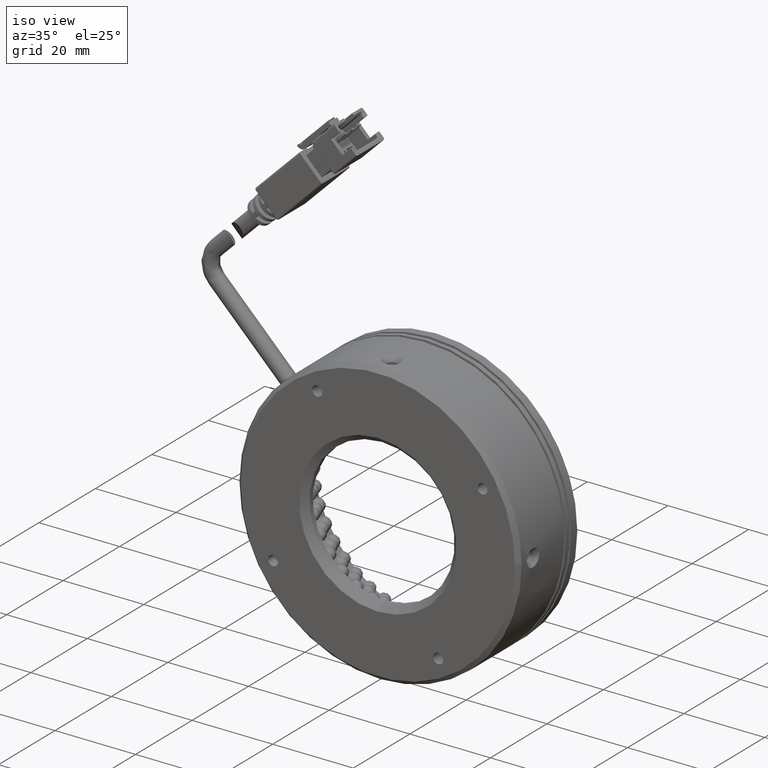
[diagram: clean part render]
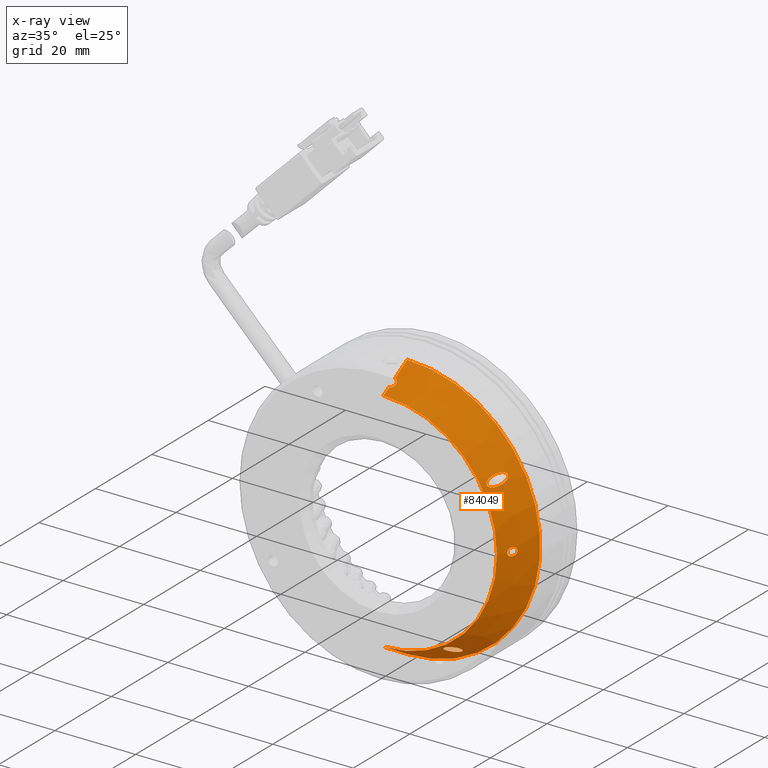
[diagram: x-ray — body ghosted, one internal face saturated and labeled with its STEP entity id]
A machine part, iso view, then the same camera in x-ray: the body is ghosted and one INTERNAL B-rep face — a face not visible from any outside direction — is saturated and labeled: STEP entity #84049.
In plain terms, the highlighted conical surface has half-angle 30 deg.
Its self-contained STEP definition (entity closure, byte-faithful):
#139 = CARTESIAN_POINT ( 'NONE',  ( -21.49797626354831700, -22.38189082735741000, -38.05720094836896500 ) ) ;
#884 = EDGE_CURVE ( 'NONE', #98752, #81162, #46905, .T. ) ;
#1439 = CARTESIAN_POINT ( 'NONE',  ( -36.22376356038467500, -21.73693679055958600, 16.74963210051000200 ) ) ;
#1794 = CARTESIAN_POINT ( 'NONE',  ( -36.75306528832788900, -22.62191358938516200, 16.25172830254819400 ) ) ;
#2592 = LINE ( 'NONE', #37901, #45368 ) ;
#2622 = CARTESIAN_POINT ( 'NONE',  ( -12.49590205995173700, -23.35478545311198000, 1.922784725851853800 ) ) ;
#2727 = AXIS2_PLACEMENT_3D ( 'NONE', #3789, #3655, #50802 ) ;
#2742 = EDGE_CURVE ( 'NONE', #93851, #26263, #67581, .T. ) ;
#2955 = CARTESIAN_POINT ( 'NONE',  ( -11.38264825980980400, -22.77147196096935700, 0.6475745150449768700 ) ) ;
#3655 = DIRECTION ( 'NONE',  ( -0.0000000000000000000, -1.000000000000000000, -0.0000000000000000000 ) ) ;
#3789 = CARTESIAN_POINT ( 'NONE',  ( -37.22376356038467500, -16.31354303190076000, -13.10242548495533300 ) ) ;
#3833 = CARTESIAN_POINT ( 'NONE',  ( -10.09720084762829000, -20.21535822616905200, 1.373669039488855300 ) ) ;
#3980 = CARTESIAN_POINT ( 'NONE',  ( -22.42275238001242600, -23.53538197597976700, -37.84384934490885400 ) ) ;
#4119 = ORIENTED_EDGE ( 'NONE', *, *, #41633, .T. ) ;
#4163 = CARTESIAN_POINT ( 'NONE',  ( -10.95214698531410800, -19.98672586071596400, 3.125690230019678900 ) ) ;
#4224 = CARTESIAN_POINT ( 'NONE',  ( -37.22376356038467500, -22.73693679055958600, 16.18902639937197900 ) ) ;
#4320 = CARTESIAN_POINT ( 'NONE',  ( -23.41550013853525400, -21.89990982141873500, -39.48170362565058900 ) ) ;
#5078 = CARTESIAN_POINT ( 'NONE',  ( -36.68999462015280200, -20.88026034299949200, 17.25654685597901100 ) ) ;
#5244 = B_SPLINE_CURVE_WITH_KNOTS ( 'NONE', 3,
 ( #88074, #31836, #96136, #47987, #104240, #56084, #7884, #64117, #16017, #72182, #24102, #80359, #32186, #88407, #40292, #96472, #48332, #139, #56435, #8244, #64457, #16370, #72528, #24448 ),
 .UNSPECIFIED., .F., .F.,
 ( 4, 2, 2, 2, 2, 2, 2, 2, 2, 2, 2, 4 ),
 ( 0.0000000000000000000, 0.0003794468816183784800, 0.0007588937632367569600, 0.001138340644855135500, 0.001517787526473513900, 0.002276681289710260600, 0.003035575052947007000, 0.003794468816183753000, 0.004553362579420499500, 0.005312256342657245000, 0.005691703224275612200, 0.006071150105893977600 ),
 .UNSPECIFIED. ) ;
#5658 = CARTESIAN_POINT ( 'NONE',  ( -36.33499386340009400, -21.26212631018349700, -43.23229002234892700 ) ) ;
#6835 = ORIENTED_EDGE ( 'NONE', *, *, #97905, .T. ) ;
#7884 = CARTESIAN_POINT ( 'NONE',  ( -21.36616679225995000, -19.39061639611098200, -39.99948754525378500 ) ) ;
#8059 = CARTESIAN_POINT ( 'NONE',  ( -7.371705974919331400, -21.73693679055958900, -14.10242548495502400 ) ) ;
#8146 = CARTESIAN_POINT ( 'NONE',  ( -7.228734752532215400, -21.48944219363549400, -14.10242548495507200 ) ) ;
#8244 = CARTESIAN_POINT ( 'NONE',  ( -21.81310888476683400, -22.90180316729351900, -37.90031822223703300 ) ) ;
#8276 = CARTESIAN_POINT ( 'NONE',  ( -7.084451242025441100, -21.24558777449047000, -14.01170895170468400 ) ) ;
#8291 = CARTESIAN_POINT ( 'NONE',  ( -6.912576492545571000, -20.95916385797935500, -13.74439459244358200 ) ) ;
#8498 = CARTESIAN_POINT ( 'NONE',  ( -6.863780785666588900, -20.87859272866875700, -13.63365225213480500 ) ) ;
#8614 = CARTESIAN_POINT ( 'NONE',  ( -6.795972323491197300, -20.76696992272197700, -13.38192625784991900 ) ) ;
#8633 = CARTESIAN_POINT ( 'NONE',  ( -6.777275444770992000, -20.73638665008905600, -13.24027501896241100 ) ) ;
#8739 = CARTESIAN_POINT ( 'NONE',  ( -6.777956277533708600, -20.73750241288133000, -12.95670656944801100 ) ) ;
#8760 = CARTESIAN_POINT ( 'NONE',  ( -6.797068559688403500, -20.76876550560859500, -12.81635830635336900 ) ) ;
#8823 = CARTESIAN_POINT ( 'NONE',  ( -6.866445573476786600, -20.88298885082649600, -12.56394337392217500 ) ) ;
#8952 = CARTESIAN_POINT ( 'NONE',  ( -6.915606860627770300, -20.96419216052076000, -12.45473583946140300 ) ) ;
#8968 = CARTESIAN_POINT ( 'NONE',  ( -7.029375112700300600, -21.15382785650841400, -12.27985627135461900 ) ) ;
#9066 = EDGE_CURVE ( 'NONE', #26263, #93851, #88215, .T. ) ;
#9104 = CARTESIAN_POINT ( 'NONE',  ( -7.094448871304950700, -21.26305439004272200, -12.21319832374728200 ) ) ;
#9191 = CARTESIAN_POINT ( 'NONE',  ( -7.371705974919345600, -21.73693679055958200, -12.10242548495502600 ) ) ;
#9564 = CARTESIAN_POINT ( 'NONE',  ( -36.22376356038467500, -21.86005118052029400, 16.67851210417519100 ) ) ;
#9681 = VERTEX_POINT ( 'NONE', #41855 ) ;
#9893 = CARTESIAN_POINT ( 'NONE',  ( -7.300333702475970000, -21.61338569052001200, -12.10242548495502400 ) ) ;
#9921 = CARTESIAN_POINT ( 'NONE',  ( -37.08130917440510600, -22.73693679055957900, 16.18902639937197600 ) ) ;
#10722 = CARTESIAN_POINT ( 'NONE',  ( -12.47283808386488600, -23.54844143918082400, 1.667658508877308200 ) ) ;
#10811 = CARTESIAN_POINT ( 'NONE',  ( -7.230557650737253500, -21.49392233044461200, -12.12455358847562100 ) ) ;
#11734 = CARTESIAN_POINT ( 'NONE',  ( -22.22376356038446600, -23.37299831455817400, -37.83318759848836500 ) ) ;
#11942 = CARTESIAN_POINT ( 'NONE',  ( -10.00860442919628400, -19.82742147913850100, 1.681334977706166400 ) ) ;
#12096 = CARTESIAN_POINT ( 'NONE',  ( -22.76250901126025300, -23.67936059248712900, -37.94791679263708100 ) ) ;
#12301 = CARTESIAN_POINT ( 'NONE',  ( -11.24300144685170000, -20.39403531776828500, 3.147574515044965400 ) ) ;
#12458 = CARTESIAN_POINT ( 'NONE',  ( -23.24350385070913200, -21.24717447929208800, -39.81701571879477100 ) ) ;
#13120 = VERTEX_POINT ( 'NONE', #46898 ) ;
#13176 = CARTESIAN_POINT ( 'NONE',  ( -36.40293500309454800, -21.15119156477078000, 17.09353577734027100 ) ) ;
#13778 = CARTESIAN_POINT ( 'NONE',  ( -36.57751122338615300, -20.96293761849323900, -43.41133839915752900 ) ) ;
#13974 = CARTESIAN_POINT ( 'NONE',  ( -37.22376356038467500, -16.31354303190076000, -13.10242548495533300 ) ) ;
#14962 = CARTESIAN_POINT ( 'NONE',  ( -7.371705974919345600, -21.73693679055958200, -12.10242548495502600 ) ) ;
#15049 = EDGE_CURVE ( 'NONE', #103161, #13120, #85653, .T. ) ;
#15352 = ORIENTED_EDGE ( 'NONE', *, *, #80797, .T. ) ;
#16017 = CARTESIAN_POINT ( 'NONE',  ( -21.15970745025480700, -19.58471260122459200, -39.74583188929354100 ) ) ;
#16287 = CARTESIAN_POINT ( 'NONE',  ( -37.22376356038467500, -16.31354303190076000, 19.89757451504466700 ) ) ;
#16370 = CARTESIAN_POINT ( 'NONE',  ( -22.04419556198803300, -23.19584430896197000, -37.84352332252316800 ) ) ;
#17585 = VERTEX_POINT ( 'NONE', #51864 ) ;
#18455 = B_SPLINE_CURVE_WITH_KNOTS ( 'NONE', 3,
 ( #1439, #9564, #82000, #33864, #90080, #41935, #98183, #49999, #1794, #58091, #9921, #66145 ),
 .UNSPECIFIED., .F., .F.,
 ( 4, 2, 2, 2, 2, 4 ),
 ( 0.003361273201533759900, 0.003779241100398689400, 0.004197208999263618900, 0.004406192948696080600, 0.004615176898128541500, 0.005033144796993476200 ),
 .UNSPECIFIED. ) ;
#18491 = CARTESIAN_POINT ( 'NONE',  ( -11.24300144685170000, -20.39403531776828500, 3.147574515044965400 ) ) ;
#18515 = CARTESIAN_POINT ( 'NONE',  ( -7.371705974919345600, -21.73693679055958200, -12.10242548495502600 ) ) ;
#18849 = CARTESIAN_POINT ( 'NONE',  ( -12.43008122877645500, -23.63135088573119400, 1.501705447081569200 ) ) ;
#18871 = CARTESIAN_POINT ( 'NONE',  ( -7.442512177063253600, -21.85950797773096700, -12.10242548495502400 ) ) ;
#18903 = CARTESIAN_POINT ( 'NONE',  ( -11.24300144685170000, -20.39403531776828500, 3.147574515044965400 ) ) ;
#19582 = CARTESIAN_POINT ( 'NONE',  ( -7.511403553714176300, -21.98008150745343400, -12.12435445072599000 ) ) ;
#19747 = CARTESIAN_POINT ( 'NONE',  ( -11.24300144685170000, -22.55769004563290300, 0.6475745150449768700 ) ) ;
#19947 = CARTESIAN_POINT ( 'NONE',  ( -7.643780173665804900, -22.21417489874954800, -12.21473967936697100 ) ) ;
#20102 = CARTESIAN_POINT ( 'NONE',  ( -9.989748613403000000, -19.57157129666699200, 1.954431966903962700 ) ) ;
#20251 = CARTESIAN_POINT ( 'NONE',  ( -23.07694984551171700, -23.62697433885663400, -38.16291866363757600 ) ) ;
#20290 = CARTESIAN_POINT ( 'NONE',  ( -7.705172089049360900, -22.32402097448376600, -12.28236228996247600 ) ) ;
#20573 = CARTESIAN_POINT ( 'NONE',  ( -22.96922054498682200, -20.59976960885933300, -40.09514193172537200 ) ) ;
#20619 = CARTESIAN_POINT ( 'NONE',  ( -7.811315446356434000, -22.51549307234620300, -12.46131582281764800 ) ) ;
#20743 = ORIENTED_EDGE ( 'NONE', *, *, #15049, .F. ) ;
#20981 = FACE_BOUND ( 'NONE', #24800, .T. ) ;
#20987 = CARTESIAN_POINT ( 'NONE',  ( -7.855553074435658100, -22.59617619867805200, -12.57272873454185500 ) ) ;
#21322 = CARTESIAN_POINT ( 'NONE',  ( -7.916187675370070800, -22.70718274436842800, -12.82404840798997900 ) ) ;
#21350 = CARTESIAN_POINT ( 'NONE',  ( -36.24595838532665900, -21.49300224651058500, 16.89131522734455300 ) ) ;
#21930 = CARTESIAN_POINT ( 'NONE',  ( -36.94052396413528800, -20.76787884122579800, -43.52966094241424600 ) ) ;
#22004 = CARTESIAN_POINT ( 'NONE',  ( -7.932625653761102800, -22.73751479385806100, -12.96443252060796600 ) ) ;
#22349 = CARTESIAN_POINT ( 'NONE',  ( -7.931988446741752500, -22.73634175591263700, -13.24867224260015600 ) ) ;
#22669 = CARTESIAN_POINT ( 'NONE',  ( -7.914975166324594200, -22.70495189563527200, -13.38838141872397500 ) ) ;
#23009 = CARTESIAN_POINT ( 'NONE',  ( -7.868760292854005900, -22.62036125764190700, -13.57599408704844800 ) ) ;
#23383 = CARTESIAN_POINT ( 'NONE',  ( -7.850212902445547600, -22.58648768132306700, -13.63413624501323300 ) ) ;
#23722 = CARTESIAN_POINT ( 'NONE',  ( -7.807221455804644900, -22.50830628771520700, -13.74230215058408800 ) ) ;
#23782 = EDGE_LOOP ( 'NONE', ( #44692, #95015 ) ) ;
#24069 = CARTESIAN_POINT ( 'NONE',  ( -7.782483397750292300, -22.46347168703145400, -13.79261027639162100 ) ) ;
#24102 = CARTESIAN_POINT ( 'NONE',  ( -20.99115333093126900, -20.03610772505069100, -39.33752620441243400 ) ) ;
#24397 = CARTESIAN_POINT ( 'NONE',  ( -7.703254725791842900, -22.32058613809341800, -13.92473044517990600 ) ) ;
#24448 = CARTESIAN_POINT ( 'NONE',  ( -22.22376356038446600, -23.37299831455817400, -37.83318759848836500 ) ) ;
#24767 = CARTESIAN_POINT ( 'NONE',  ( -7.641724003806247700, -22.21052251967334400, -13.99185252679292400 ) ) ;
#24788 = VERTEX_POINT ( 'NONE', #93802 ) ;
#24800 = EDGE_LOOP ( 'NONE', ( #6835, #35846 ) ) ;
#25097 = CARTESIAN_POINT ( 'NONE',  ( -7.510802757835533000, -21.97903567050248700, -14.08056250904884600 ) ) ;
#25447 = CARTESIAN_POINT ( 'NONE',  ( -7.371705974919331400, -21.73693679055958900, -14.10242548495502400 ) ) ;
#25869 = EDGE_CURVE ( 'NONE', #13120, #101973, #62578, .T. ) ;
#26187 = EDGE_LOOP ( 'NONE', ( #27072, #57127 ) ) ;
#26243 = CARTESIAN_POINT ( 'NONE',  ( -7.442624616897099100, -21.85970262005754300, -14.10242548495507500 ) ) ;
#26263 = VERTEX_POINT ( 'NONE', #51672 ) ;
#26567 = CARTESIAN_POINT ( 'NONE',  ( -11.87679861631910900, -21.47534031281225000, 2.982409781591396100 ) ) ;
#26909 = CARTESIAN_POINT ( 'NONE',  ( -12.33182574608302900, -23.68618247437155600, 1.270827928127359800 ) ) ;
#26910 = CARTESIAN_POINT ( 'NONE',  ( -37.22376356038466800, -22.73693679055958600, -42.39387736928264200 ) ) ;
#27072 = ORIENTED_EDGE ( 'NONE', *, *, #9066, .F. ) ;
#27786 = CARTESIAN_POINT ( 'NONE',  ( -11.10534113531478300, -22.34694921708992900, 0.6475745150449767600 ) ) ;
#28140 = CARTESIAN_POINT ( 'NONE',  ( -10.04696001906443700, -19.38190252542250700, 2.281149745876394100 ) ) ;
#28294 = CARTESIAN_POINT ( 'NONE',  ( -23.28214192803038400, -23.42344910295543100, -38.41178264162199000 ) ) ;
#28655 = CARTESIAN_POINT ( 'NONE',  ( -22.64679769704466100, -20.08245933051756900, -40.26184743273331200 ) ) ;
#29059 = CARTESIAN_POINT ( 'NONE',  ( -37.22376356038467500, -20.73693679055958200, 17.34372693775124900 ) ) ;
#29402 = CARTESIAN_POINT ( 'NONE',  ( -36.22376356038467500, -21.73693679055958600, 16.74963210051000200 ) ) ;
#29504 = DIRECTION ( 'NONE',  ( -0.0000000000000000000, 1.000000000000000000, 0.0000000000000000000 ) ) ;
#30002 = CARTESIAN_POINT ( 'NONE',  ( -37.22376356038466800, -20.73693679055958200, -43.54857790766191500 ) ) ;
#30116 = VECTOR ( 'NONE', #56353, 1000.000000000000100 ) ;
#30253 = CARTESIAN_POINT ( 'NONE',  ( -37.22376356038467500, -16.31354303190076000, -46.10242548495533300 ) ) ;
#31241 = DIRECTION ( 'NONE',  ( 6.123233995736832600E-017, 0.8660254037844353800, -0.5000000000000054400 ) ) ;
#31836 = CARTESIAN_POINT ( 'NONE',  ( -22.12597681228731600, -19.54209303086313600, -40.33318759848836500 ) ) ;
#32186 = CARTESIAN_POINT ( 'NONE',  ( -20.97919767477271000, -20.65575789367760300, -38.90824062823838100 ) ) ;
#33864 = CARTESIAN_POINT ( 'NONE',  ( -36.33497328281922700, -22.21181571845361800, 16.47888660886528500 ) ) ;
#34650 = CARTESIAN_POINT ( 'NONE',  ( -12.17296802236225000, -22.13034195602866900, 2.743350160133649000 ) ) ;
#34735 = VERTEX_POINT ( 'NONE', #80861 ) ;
#35005 = CARTESIAN_POINT ( 'NONE',  ( -12.09823085552053000, -23.58528059229585200, 0.9779587210988771600 ) ) ;
#35281 = CARTESIAN_POINT ( 'NONE',  ( -36.22376356038467500, -21.73693679055958600, 16.74963210051000200 ) ) ;
#35846 = ORIENTED_EDGE ( 'NONE', *, *, #41357, .T. ) ;
#35888 = CARTESIAN_POINT ( 'NONE',  ( -10.73972496597178200, -21.70644753997753500, 0.7465225748286048500 ) ) ;
#36260 = CARTESIAN_POINT ( 'NONE',  ( -10.21399957418054200, -19.34269065905788700, 2.617610805915555600 ) ) ;
#36405 = CARTESIAN_POINT ( 'NONE',  ( -23.40033677273194700, -23.15376457820582300, -38.65364403434539000 ) ) ;
#36744 = CARTESIAN_POINT ( 'NONE',  ( -22.40996357091690800, -19.79575818506239000, -40.32203259758862400 ) ) ;
#37019 = EDGE_CURVE ( 'NONE', #90129, #48219, #50102, .T. ) ;
#37461 = CIRCLE ( 'NONE', #44592, 28.13675134594804900 ) ;
#37901 = CARTESIAN_POINT ( 'NONE',  ( -37.22376356038467500, -16.31354303190076000, 19.89757451504466700 ) ) ;
#38574 = EDGE_CURVE ( 'NONE', #48219, #90129, #48481, .T. ) ;
#39150 = EDGE_CURVE ( 'NONE', #34735, #76104, #47320, .T. ) ;
#39321 = CARTESIAN_POINT ( 'NONE',  ( -37.22376356038466800, -16.31354303190076000, -46.10242548495533300 ) ) ;
#40111 = CARTESIAN_POINT ( 'NONE',  ( -36.22376356038444800, -21.85960216332461000, -42.88362245969725700 ) ) ;
#40230 = CARTESIAN_POINT ( 'NONE',  ( -36.24581898266537600, -21.98035553533075900, -42.81463110586997100 ) ) ;
#40292 = CARTESIAN_POINT ( 'NONE',  ( -21.09161038301356000, -21.30055751131752100, -38.53887510283171700 ) ) ;
#40557 = CARTESIAN_POINT ( 'NONE',  ( -36.40330892298315700, -22.32331012175976400, -42.62141473433642600 ) ) ;
#40639 = AXIS2_PLACEMENT_3D ( 'NONE', #13974, #29504, #94500 ) ;
#41271 = CARTESIAN_POINT ( 'NONE',  ( -36.58096936538312600, -22.51397933665900200, -42.51570907389638900 ) ) ;
#41357 = EDGE_CURVE ( 'NONE', #17585, #58567, #46181, .T. ) ;
#41633 = EDGE_CURVE ( 'NONE', #34735, #81162, #51464, .T. ) ;
#41670 = CARTESIAN_POINT ( 'NONE',  ( -36.69190968316112800, -22.59477768815831700, -42.47140224433280100 ) ) ;
#41810 = CARTESIAN_POINT ( 'NONE',  ( -36.94215903926311000, -22.70619343665209300, -42.41053943392838500 ) ) ;
#41855 = CARTESIAN_POINT ( 'NONE',  ( -37.22376356038467500, -24.73693679055957900, -41.23917683090338200 ) ) ;
#41935 = CARTESIAN_POINT ( 'NONE',  ( -36.53533472891862700, -22.46515518588921600, 16.33792393166424600 ) ) ;
#42278 = CARTESIAN_POINT ( 'NONE',  ( -37.22376356038466800, -22.73693679055958600, -42.39387736928264200 ) ) ;
#42337 = FACE_BOUND ( 'NONE', #23782, .T. ) ;
#42740 = CARTESIAN_POINT ( 'NONE',  ( -12.39689520499157600, -22.77301293687164500, 2.402625863738276000 ) ) ;
#43070 = CARTESIAN_POINT ( 'NONE',  ( -11.84725646420200100, -23.35520785720759900, 0.7988498571394788700 ) ) ;
#43151 = CARTESIAN_POINT ( 'NONE',  ( -37.08162090191197500, -22.73693679055970700, -42.39387736928257800 ) ) ;
#43926 = CARTESIAN_POINT ( 'NONE',  ( -10.42186338768829200, -21.05786829979856400, 0.9467101973421648800 ) ) ;
#44283 = CARTESIAN_POINT ( 'NONE',  ( -10.45748404704531300, -19.47925838953440100, 2.875228428042170000 ) ) ;
#44435 = CARTESIAN_POINT ( 'NONE',  ( -23.45924174418464900, -22.85672748774286200, -38.87997084198148200 ) ) ;
#44592 = AXIS2_PLACEMENT_3D ( 'NONE', #93727, #45541, #101839 ) ;
#44692 = ORIENTED_EDGE ( 'NONE', *, *, #38574, .T. ) ;
#44795 = CARTESIAN_POINT ( 'NONE',  ( -22.22376356038446900, -19.62381291169545200, -40.33318759848835800 ) ) ;
#45368 = VECTOR ( 'NONE', #94089, 1000.000000000000100 ) ;
#45541 = DIRECTION ( 'NONE',  ( -0.0000000000000000000, 1.000000000000000000, 0.0000000000000000000 ) ) ;
#46181 = B_SPLINE_CURVE_WITH_KNOTS ( 'NONE', 3,
 ( #11734, #84202, #3980, #60272, #12096, #68300, #20251, #76418, #28294, #84535, #36405, #92629, #44435, #100732, #52513, #4320, #60616, #12458, #68647, #20573, #76766, #28655, #84879, #36744, #92986, #44795 ),
 .UNSPECIFIED., .F., .F.,
 ( 4, 2, 2, 2, 2, 2, 2, 2, 2, 2, 2, 2, 4 ),
 ( 0.006071150105893977600, 0.006452926246953654000, 0.006834702388013331300, 0.007216478529073007800, 0.007598254670132685100, 0.007980030811192362300, 0.008361806952252038800, 0.009125359234371403800, 0.009888911516490770500, 0.01065246379861013600, 0.01141601608072950100, 0.01179779222178918600, 0.01217956836284886700 ),
 .UNSPECIFIED. ) ;
#46898 = CARTESIAN_POINT ( 'NONE',  ( -36.22376356038444800, -21.73693679055958600, -42.95448307042066500 ) ) ;
#46905 = CIRCLE ( 'NONE', #2727, 33.00000000000000000 ) ;
#47320 = B_SPLINE_CURVE_WITH_KNOTS ( 'NONE', 3,
 ( #29059, #77166, #53278, #5078, #61360, #13176, #69408, #21350, #77523, #29402 ),
 .UNSPECIFIED., .F., .F.,
 ( 4, 2, 2, 2, 4 ),
 ( 0.001683698339101764400, 0.002103092054709763200, 0.002522485770317762400, 0.002941879485925761100, 0.003361273201533759900 ),
 .UNSPECIFIED. ) ;
#47777 = LINE ( 'NONE', #39321, #88026 ) ;
#47987 = CARTESIAN_POINT ( 'NONE',  ( -21.79633809207373900, -19.36807984019703400, -40.26349270222550600 ) ) ;
#48219 = VERTEX_POINT ( 'NONE', #50599 ) ;
#48332 = CARTESIAN_POINT ( 'NONE',  ( -21.30230454521023700, -21.94988805102278900, -38.22859466040261400 ) ) ;
#48481 = B_SPLINE_CURVE_WITH_KNOTS ( 'NONE', 3,
 ( #19747, #27786, #84061, #35888, #92129, #43926, #100233, #52000, #3833, #60124, #11942, #68154, #20102, #76270, #28140, #84386, #36260, #92464, #44283, #100588, #52369, #4163, #60475, #12301 ),
 .UNSPECIFIED., .F., .F.,
 ( 4, 2, 2, 2, 2, 2, 2, 2, 2, 2, 2, 4 ),
 ( 0.0000000000000000000, 0.0007438411384502948200, 0.001487682276900589600, 0.002231523415350884300, 0.002975364553801179300, 0.003347285123026326300, 0.003719205692251474200, 0.004091126261476621200, 0.004463046830701768700, 0.004834967399926916100, 0.005206887969152063600, 0.005950729107602354200 ),
 .UNSPECIFIED. ) ;
#49999 = CARTESIAN_POINT ( 'NONE',  ( -36.69462902322123900, -22.58811006822307000, 16.27023535715924800 ) ) ;
#50102 = B_SPLINE_CURVE_WITH_KNOTS ( 'NONE', 3,
 ( #18491, #58571, #81774, #74671, #26567, #82817, #34650, #90914, #42740, #99029, #50815, #2622, #58924, #10722, #66922, #18849, #75031, #26909, #83166, #35005, #91272, #43070, #99366, #51155, #2955, #59263 ),
 .UNSPECIFIED., .F., .F.,
 ( 4, 2, 2, 2, 2, 2, 2, 2, 2, 2, 2, 2, 4 ),
 ( 0.005950729107602354200, 0.006705304214777346600, 0.007459879321952338900, 0.008214454429127330400, 0.008969029536302323600, 0.009346317089889815900, 0.009723604643477308200, 0.009912248420271052600, 0.01010089219706479500, 0.01047817975065227900, 0.01085546730423976200, 0.01123275485782724800, 0.01198732996500220600 ),
 .UNSPECIFIED. ) ;
#50599 = CARTESIAN_POINT ( 'NONE',  ( -11.24300144685170000, -22.55769004563290300, 0.6475745150449768700 ) ) ;
#50802 = DIRECTION ( 'NONE',  ( 0.0000000000000000000, 0.0000000000000000000, 1.000000000000000000 ) ) ;
#50815 = CARTESIAN_POINT ( 'NONE',  ( -12.47973747452426900, -23.17107374160343600, 2.099761307126119600 ) ) ;
#51155 = CARTESIAN_POINT ( 'NONE',  ( -11.52858994103464200, -22.97733428685247500, 0.6689894473165439700 ) ) ;
#51464 = LINE ( 'NONE', #16287, #30116 ) ;
#51672 = CARTESIAN_POINT ( 'NONE',  ( -7.371705974919331400, -21.73693679055958900, -14.10242548495502400 ) ) ;
#51864 = CARTESIAN_POINT ( 'NONE',  ( -22.22376356038446600, -23.37299831455817400, -37.83318759848836500 ) ) ;
#52000 = CARTESIAN_POINT ( 'NONE',  ( -10.16671569766650100, -20.42364651392339400, 1.247987207653570500 ) ) ;
#52369 = CARTESIAN_POINT ( 'NONE',  ( -10.70855400235712600, -19.71242065470287500, 3.030913414432288000 ) ) ;
#52393 = FACE_OUTER_BOUND ( 'NONE', #54208, .T. ) ;
#52513 = CARTESIAN_POINT ( 'NONE',  ( -23.47168874629417700, -22.33022196489894600, -39.23061156526422600 ) ) ;
#53278 = CARTESIAN_POINT ( 'NONE',  ( -36.94030851338750000, -20.76819685967397100, 17.32461787431448000 ) ) ;
#53281 = ORIENTED_EDGE ( 'NONE', *, *, #884, .F. ) ;
#53875 = CARTESIAN_POINT ( 'NONE',  ( -36.24597916290897400, -21.49343270721361400, -43.09591737321576200 ) ) ;
#54208 = EDGE_LOOP ( 'NONE', ( #77728, #72751, #15352, #68180, #98506, #4119, #53281, #84778, #69689, #20743 ) ) ;
#56084 = CARTESIAN_POINT ( 'NONE',  ( -21.46199242345470300, -19.35103143249650900, -40.08231046991166100 ) ) ;
#56353 = DIRECTION ( 'NONE',  ( 0.0000000000000000000, 0.8660254037844353800, 0.5000000000000054400 ) ) ;
#56356 = CARTESIAN_POINT ( 'NONE',  ( -37.22376356038466800, -20.73693679055958200, -43.54857790766191500 ) ) ;
#56435 = CARTESIAN_POINT ( 'NONE',  ( -21.61097952977838000, -22.59361899347829100, -37.98397668726450100 ) ) ;
#57127 = ORIENTED_EDGE ( 'NONE', *, *, #2742, .F. ) ;
#58091 = CARTESIAN_POINT ( 'NONE',  ( -36.94166674408499100, -22.70615533007467600, 16.20570831117922600 ) ) ;
#58567 = VERTEX_POINT ( 'NONE', #95353 ) ;
#58571 = CARTESIAN_POINT ( 'NONE',  ( -11.38677307084630300, -20.60515972497516700, 3.147574515044965400 ) ) ;
#58924 = CARTESIAN_POINT ( 'NONE',  ( -12.49555151400458900, -23.44083245184121700, 1.826465979669141100 ) ) ;
#59263 = CARTESIAN_POINT ( 'NONE',  ( -11.24300144685170000, -22.55769004563290300, 0.6475745150449768700 ) ) ;
#60124 = CARTESIAN_POINT ( 'NONE',  ( -10.02656496781108700, -19.92243399476920000, 1.599260448021871700 ) ) ;
#60272 = CARTESIAN_POINT ( 'NONE',  ( -22.64415230027507400, -23.64665106635011300, -37.90046651366083100 ) ) ;
#60475 = CARTESIAN_POINT ( 'NONE',  ( -11.10127500046869500, -20.18591419381635200, 3.147574515044964100 ) ) ;
#60588 = CARTESIAN_POINT ( 'NONE',  ( -36.33584036890712100, -22.21361350326200700, -42.68272576060002900 ) ) ;
#60616 = CARTESIAN_POINT ( 'NONE',  ( -23.36943498519935900, -21.68325004249724600, -39.59875617416619800 ) ) ;
#60782 = LINE ( 'NONE', #84107, #79635 ) ;
#61360 = CARTESIAN_POINT ( 'NONE',  ( -36.57972804578415800, -20.96100171213445400, 17.20765431284115000 ) ) ;
#61933 = CARTESIAN_POINT ( 'NONE',  ( -36.40190722674893900, -21.15275448314320900, -43.29745434940705500 ) ) ;
#62578 = B_SPLINE_CURVE_WITH_KNOTS ( 'NONE', 3,
 ( #85861, #93954, #53875, #5658, #61933, #13778, #70012, #21930, #78111, #30002 ),
 .UNSPECIFIED., .F., .F.,
 ( 4, 2, 2, 2, 4 ),
 ( 0.003337419902390002000, 0.003757264186302571600, 0.004177108470215141700, 0.004596952754127711300, 0.005016797038040280900 ),
 .UNSPECIFIED. ) ;
#63669 = FACE_BOUND ( 'NONE', #26187, .T. ) ;
#64117 = CARTESIAN_POINT ( 'NONE',  ( -21.21675441060066100, -19.50752576058418300, -39.83219386107342100 ) ) ;
#64457 = CARTESIAN_POINT ( 'NONE',  ( -21.88628881093044900, -23.00312753893271300, -37.87690281592939100 ) ) ;
#66145 = CARTESIAN_POINT ( 'NONE',  ( -37.22376356038467500, -22.73693679055958600, 16.18902639937197900 ) ) ;
#66424 = EDGE_CURVE ( 'NONE', #101973, #98752, #60782, .T. ) ;
#66460 = VERTEX_POINT ( 'NONE', #4224 ) ;
#66922 = CARTESIAN_POINT ( 'NONE',  ( -12.46166476750635800, -23.57988216543033700, 1.613443491544015200 ) ) ;
#67581 = B_SPLINE_CURVE_WITH_KNOTS ( 'NONE', 3,
 ( #9191, #9893, #10811, #9104, #8968, #8952, #8823, #8760, #8739, #8633, #8614, #8498, #8291, #8276, #8146, #8059 ),
 .UNSPECIFIED., .F., .F.,
 ( 4, 2, 2, 2, 2, 2, 2, 4 ),
 ( 0.0000000000000000000, 0.0004200646834407388900, 0.0008401293668814777900, 0.001260194050322217000, 0.001680258733762955600, 0.002100323417203694600, 0.002520388100644433900, 0.003360517467525904600 ),
 .UNSPECIFIED. ) ;
#67859 = DIRECTION ( 'NONE',  ( 6.123233995736832600E-017, 0.8660254037844353800, -0.5000000000000054400 ) ) ;
#68154 = CARTESIAN_POINT ( 'NONE',  ( -9.990393740092411400, -19.65200952232089200, 1.859240878740378900 ) ) ;
#68180 = ORIENTED_EDGE ( 'NONE', *, *, #74480, .F. ) ;
#68300 = CARTESIAN_POINT ( 'NONE',  ( -22.98266962167451400, -23.66904869791883200, -38.08161480852509600 ) ) ;
#68647 = CARTESIAN_POINT ( 'NONE',  ( -23.16331210408815300, -21.02775375236591100, -39.91805658370333300 ) ) ;
#69408 = CARTESIAN_POINT ( 'NONE',  ( -36.33602254855546900, -21.25994316579392100, 17.02873120265211400 ) ) ;
#69689 = ORIENTED_EDGE ( 'NONE', *, *, #25869, .F. ) ;
#70012 = CARTESIAN_POINT ( 'NONE',  ( -36.68710870787895600, -20.88177625163563900, -43.46047810147527500 ) ) ;
#72182 = CARTESIAN_POINT ( 'NONE',  ( -21.02915169351517100, -19.83702148010070200, -39.49629041147679900 ) ) ;
#72528 = CARTESIAN_POINT ( 'NONE',  ( -22.12907865898471400, -23.28794897654373100, -37.83318759848818800 ) ) ;
#72751 = ORIENTED_EDGE ( 'NONE', *, *, #79329, .F. ) ;
#74480 = EDGE_CURVE ( 'NONE', #76104, #66460, #18455, .T. ) ;
#74671 = CARTESIAN_POINT ( 'NONE',  ( -11.76295387951934400, -21.25393437337983800, 3.041605699403914900 ) ) ;
#75031 = CARTESIAN_POINT ( 'NONE',  ( -12.40915949351425100, -23.65154690539933200, 1.443110193115795900 ) ) ;
#76104 = VERTEX_POINT ( 'NONE', #35281 ) ;
#76270 = CARTESIAN_POINT ( 'NONE',  ( -10.01749732556035100, -19.43529281115175800, 2.165930776527754000 ) ) ;
#76418 = CARTESIAN_POINT ( 'NONE',  ( -23.22576472062973000, -23.50386272469513600, -38.32766431992719400 ) ) ;
#76766 = CARTESIAN_POINT ( 'NONE',  ( -22.85492184485776300, -20.38868769878456200, -40.17264928322494900 ) ) ;
#77166 = CARTESIAN_POINT ( 'NONE',  ( -37.08058313454807800, -20.73693679055958600, 17.34372693775124900 ) ) ;
#77523 = CARTESIAN_POINT ( 'NONE',  ( -36.22376356038467500, -21.61340241964101200, 16.82099470897320600 ) ) ;
#77728 = ORIENTED_EDGE ( 'NONE', *, *, #97293, .F. ) ;
#78111 = CARTESIAN_POINT ( 'NONE',  ( -37.08056777850441000, -20.73693679055955700, -43.54857790766193700 ) ) ;
#79329 = EDGE_CURVE ( 'NONE', #24788, #9681, #37461, .T. ) ;
#79635 = VECTOR ( 'NONE', #67859, 1000.000000000000100 ) ;
#80359 = CARTESIAN_POINT ( 'NONE',  ( -20.96575815272499800, -20.44257674103097200, -39.04526005552036600 ) ) ;
#80797 = EDGE_CURVE ( 'NONE', #24788, #66460, #2592, .T. ) ;
#80861 = CARTESIAN_POINT ( 'NONE',  ( -37.22376356038467500, -20.73693679055958200, 17.34372693775124900 ) ) ;
#81162 = VERTEX_POINT ( 'NONE', #95238 ) ;
#81774 = CARTESIAN_POINT ( 'NONE',  ( -11.51822864637102800, -20.81969408785071400, 3.123709854910631000 ) ) ;
#82000 = CARTESIAN_POINT ( 'NONE',  ( -36.24574650120936100, -21.97971402510746200, 16.61014776869176800 ) ) ;
#82817 = CARTESIAN_POINT ( 'NONE',  ( -12.08166838116179600, -21.91351051255679400, 2.833097994634158600 ) ) ;
#83166 = CARTESIAN_POINT ( 'NONE',  ( -12.25858968546199000, -23.67271511630060500, 1.158865452203860800 ) ) ;
#84049 = ADVANCED_FACE ( 'NONE', ( #52393, #63669, #20981, #42337 ), #93848, .F. ) ;
#84061 = CARTESIAN_POINT ( 'NONE',  ( -10.97826522371453500, -22.13432761069441000, 0.6695181167302163300 ) ) ;
#84107 = CARTESIAN_POINT ( 'NONE',  ( -37.22376356038466800, -16.31354303190076000, -46.10242548495533300 ) ) ;
#84202 = CARTESIAN_POINT ( 'NONE',  ( -22.31902969122908300, -23.45856973348361800, -37.83318759848815200 ) ) ;
#84386 = CARTESIAN_POINT ( 'NONE',  ( -10.14472610101541900, -19.33488018727011900, 2.507030271781238300 ) ) ;
#84535 = CARTESIAN_POINT ( 'NONE',  ( -23.36897124885411600, -23.24946306563324300, -38.57382649330308800 ) ) ;
#84778 = ORIENTED_EDGE ( 'NONE', *, *, #66424, .F. ) ;
#84879 = CARTESIAN_POINT ( 'NONE',  ( -22.57233737356045800, -19.98384879235903400, -40.28647628890557500 ) ) ;
#85653 = B_SPLINE_CURVE_WITH_KNOTS ( 'NONE', 3,
 ( #42278, #43151, #41810, #41670, #41271, #40557, #60588, #40230, #40111, #98761 ),
 .UNSPECIFIED., .F., .F.,
 ( 4, 2, 2, 2, 4 ),
 ( 0.001673488260522944700, 0.002089471170989709200, 0.002505454081456473400, 0.002921436991923237500, 0.003337419902390002000 ),
 .UNSPECIFIED. ) ;
#85861 = CARTESIAN_POINT ( 'NONE',  ( -36.22376356038444800, -21.73693679055958600, -42.95448307042066500 ) ) ;
#88026 = VECTOR ( 'NONE', #31241, 1000.000000000000100 ) ;
#88074 = CARTESIAN_POINT ( 'NONE',  ( -22.22376356038446900, -19.62381291169545200, -40.33318759848835800 ) ) ;
#88215 = B_SPLINE_CURVE_WITH_KNOTS ( 'NONE', 3,
 ( #25447, #26243, #25097, #24767, #24397, #24069, #23722, #23383, #23009, #22669, #22349, #22004, #21322, #20987, #20619, #20290, #19947, #19582, #18871, #18515 ),
 .UNSPECIFIED., .F., .F.,
 ( 4, 2, 2, 2, 2, 2, 2, 2, 2, 4 ),
 ( 0.003360517467525904600, 0.003777250519045581900, 0.004193983570565259200, 0.004402350096325097400, 0.004610716622084935600, 0.005027449673604616300, 0.005444182725124296200, 0.005860915776643977000, 0.006277648828163657700, 0.006694381879683337600 ),
 .UNSPECIFIED. ) ;
#88407 = CARTESIAN_POINT ( 'NONE',  ( -21.04222324868138800, -21.08521277374226300, -38.65480321753029400 ) ) ;
#90080 = CARTESIAN_POINT ( 'NONE',  ( -36.40245465010184500, -22.32208362943907400, 16.41724766625548800 ) ) ;
#90129 = VERTEX_POINT ( 'NONE', #18903 ) ;
#90914 = CARTESIAN_POINT ( 'NONE',  ( -12.33005851086422500, -22.55864004336521600, 2.528828198576761100 ) ) ;
#91272 = CARTESIAN_POINT ( 'NONE',  ( -12.01282723741606700, -23.51515249307407600, 0.9077824903930760100 ) ) ;
#92129 = CARTESIAN_POINT ( 'NONE',  ( -10.62838680539689500, -21.49116361805718300, 0.8018284197307104000 ) ) ;
#92464 = CARTESIAN_POINT ( 'NONE',  ( -10.37213189494311600, -19.41673832778624100, 2.802496245190709200 ) ) ;
#92629 = CARTESIAN_POINT ( 'NONE',  ( -23.44530770646523300, -22.95788558332445500, -38.80630838892916000 ) ) ;
#92986 = CARTESIAN_POINT ( 'NONE',  ( -22.32215057881530400, -19.70603443534839300, -40.33318759848835100 ) ) ;
#93727 = CARTESIAN_POINT ( 'NONE',  ( -37.22376356038467500, -24.73693679055957900, -13.10242548495533300 ) ) ;
#93802 = CARTESIAN_POINT ( 'NONE',  ( -37.22376356038467500, -24.73693679055957900, 15.03432586099271600 ) ) ;
#93848 = CONICAL_SURFACE ( 'NONE', #40639, 33.00000000000000000, 0.5235987755983051400 ) ;
#93851 = VERTEX_POINT ( 'NONE', #14962 ) ;
#93954 = CARTESIAN_POINT ( 'NONE',  ( -36.22376356038445500, -21.61313277290988600, -43.02600144682079300 ) ) ;
#94089 = DIRECTION ( 'NONE',  ( 0.0000000000000000000, 0.8660254037844353800, 0.5000000000000054400 ) ) ;
#94500 = DIRECTION ( 'NONE',  ( 0.0000000000000000000, 0.0000000000000000000, 1.000000000000000000 ) ) ;
#95015 = ORIENTED_EDGE ( 'NONE', *, *, #37019, .T. ) ;
#95238 = CARTESIAN_POINT ( 'NONE',  ( -37.22376356038466800, -16.31354303190076000, 19.89757451504466700 ) ) ;
#95353 = CARTESIAN_POINT ( 'NONE',  ( -22.22376356038446900, -19.62381291169545200, -40.33318759848835800 ) ) ;
#96136 = CARTESIAN_POINT ( 'NONE',  ( -22.01961396310200000, -19.46989985614693500, -40.32178987960929800 ) ) ;
#96472 = CARTESIAN_POINT ( 'NONE',  ( -21.22143861204443400, -21.73241915822956800, -38.32596133910869400 ) ) ;
#97293 = EDGE_CURVE ( 'NONE', #9681, #103161, #47777, .T. ) ;
#97905 = EDGE_CURVE ( 'NONE', #58567, #17585, #5244, .T. ) ;
#98183 = CARTESIAN_POINT ( 'NONE',  ( -36.58592225394296100, -22.51000714623513200, 16.31317910095581800 ) ) ;
#98506 = ORIENTED_EDGE ( 'NONE', *, *, #39150, .F. ) ;
#98752 = VERTEX_POINT ( 'NONE', #30253 ) ;
#98761 = CARTESIAN_POINT ( 'NONE',  ( -36.22376356038444800, -21.73693679055958600, -42.95448307042066500 ) ) ;
#99029 = CARTESIAN_POINT ( 'NONE',  ( -12.46321977901181200, -23.07406545339011200, 2.179672262879217100 ) ) ;
#99366 = CARTESIAN_POINT ( 'NONE',  ( -11.76527914151890500, -23.26374686226473500, 0.7587828203892572600 ) ) ;
#100233 = CARTESIAN_POINT ( 'NONE',  ( -10.32834424335399600, -20.84332524079823700, 1.035161108427870700 ) ) ;
#100588 = CARTESIAN_POINT ( 'NONE',  ( -10.62586871427903600, -19.62741775848515100, 2.989358353258707800 ) ) ;
#100732 = CARTESIAN_POINT ( 'NONE',  ( -23.48200435502795000, -22.54620442728340300, -39.09517399830156100 ) ) ;
#101839 = DIRECTION ( 'NONE',  ( 0.0000000000000000000, 0.0000000000000000000, 1.000000000000000000 ) ) ;
#101973 = VERTEX_POINT ( 'NONE', #56356 ) ;
#103161 = VERTEX_POINT ( 'NONE', #26910 ) ;
#104240 = CARTESIAN_POINT ( 'NONE',  ( -21.67788974153411600, -19.33972924451122600, -40.21480747775618200 ) ) ;